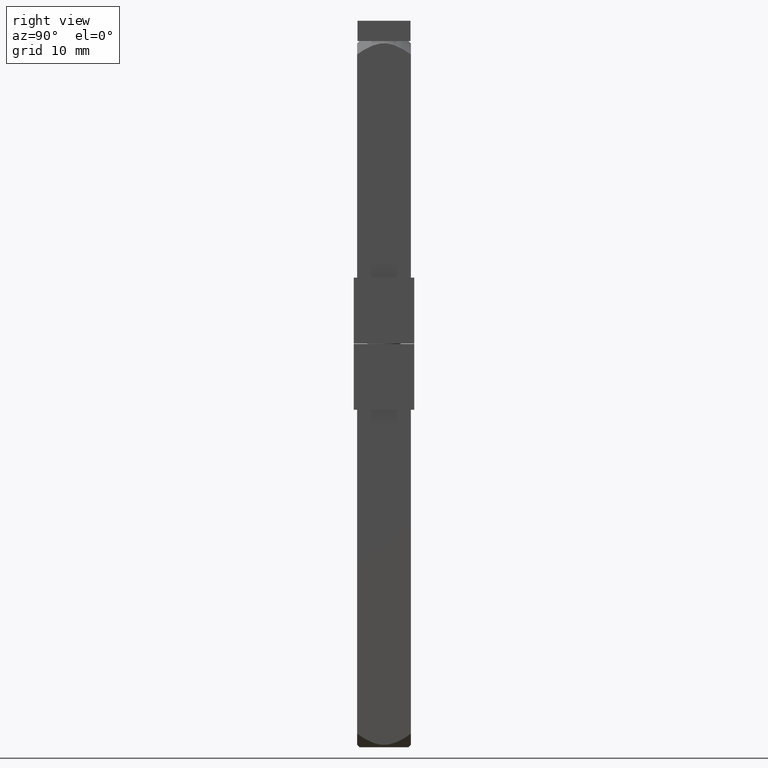
[diagram: clean part render]
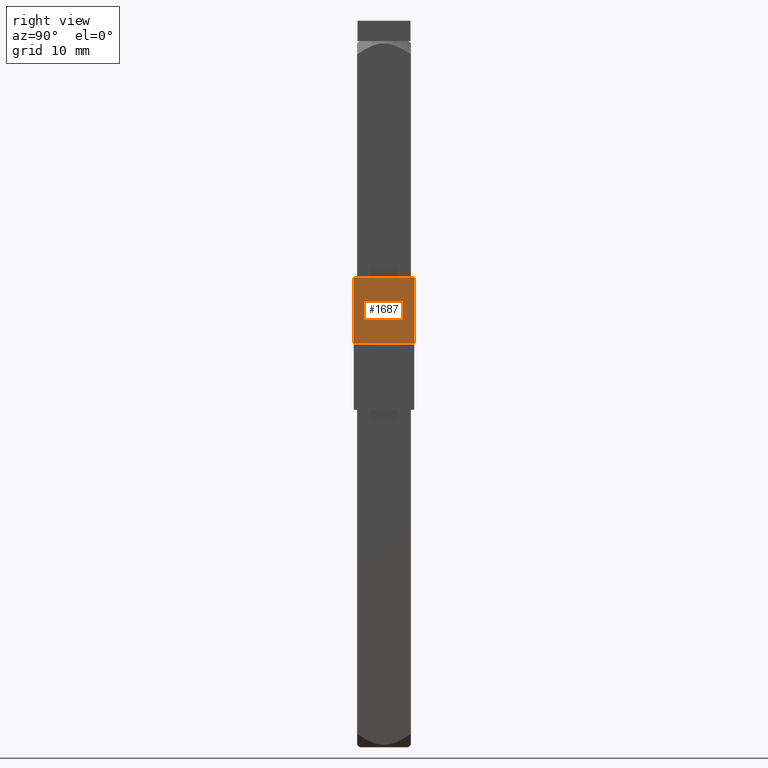
[diagram: same view with one face highlighted and labeled with its STEP entity id]
A machine part, right view. The second image highlights one B-rep face of the part: STEP entity #1687.
In plain terms, the highlighted planar face has unit normal (1, 0, 0).
Its self-contained STEP definition (entity closure, byte-faithful):
#958 = ORIENTED_EDGE ( 'NONE', *, *, #7749, .F. ) ;
#1439 = DIRECTION ( 'NONE',  ( 1.000000000000000000, 0.0000000000000000000, 0.0000000000000000000 ) ) ;
#1687 = ADVANCED_FACE ( 'NONE', ( #7536 ), #5926, .T. ) ;
#1795 = VECTOR ( 'NONE', #9469, 1000.000000000000000 ) ;
#1899 = CARTESIAN_POINT ( 'NONE',  ( 4.500000000000010700, -4.500000000000009800, 0.0000000000000000000 ) ) ;
#1926 = VERTEX_POINT ( 'NONE', #2427 ) ;
#2351 = CARTESIAN_POINT ( 'NONE',  ( -4.500000000000008900, -4.500000000000009800, -9.800000000000000700 ) ) ;
#2427 = CARTESIAN_POINT ( 'NONE',  ( 4.500000000000010700, -4.500000000000009800, -9.800000000000000700 ) ) ;
#2741 = VERTEX_POINT ( 'NONE', #7024 ) ;
#2744 = VERTEX_POINT ( 'NONE', #5282 ) ;
#3457 = VECTOR ( 'NONE', #11150, 1000.000000000000000 ) ;
#4356 = DIRECTION ( 'NONE',  ( 0.0000000000000000000, -1.000000000000000000, 0.0000000000000000000 ) ) ;
#4420 = VECTOR ( 'NONE', #10646, 1000.000000000000000 ) ;
#4506 = LINE ( 'NONE', #6532, #3457 ) ;
#4878 = CARTESIAN_POINT ( 'NONE',  ( -4.500000000000008900, -4.500000000000009800, 0.0000000000000000000 ) ) ;
#5211 = EDGE_CURVE ( 'NONE', #1926, #10139, #9012, .T. ) ;
#5215 = VECTOR ( 'NONE', #1439, 1000.000000000000000 ) ;
#5282 = CARTESIAN_POINT ( 'NONE',  ( -4.500000000000008900, -4.500000000000009800, -9.800000000000000700 ) ) ;
#5431 = LINE ( 'NONE', #4878, #1795 ) ;
#5894 = AXIS2_PLACEMENT_3D ( 'NONE', #10311, #4356, #7680 ) ;
#5926 = PLANE ( 'NONE',  #5894 ) ;
#6532 = CARTESIAN_POINT ( 'NONE',  ( -4.500000000000008900, -4.500000000000009800, -9.800000000000000700 ) ) ;
#6773 = ORIENTED_EDGE ( 'NONE', *, *, #6802, .T. ) ;
#6802 = EDGE_CURVE ( 'NONE', #2744, #1926, #9124, .T. ) ;
#7020 = ORIENTED_EDGE ( 'NONE', *, *, #10272, .F. ) ;
#7024 = CARTESIAN_POINT ( 'NONE',  ( -4.500000000000008900, -4.500000000000009800, 0.0000000000000000000 ) ) ;
#7536 = FACE_OUTER_BOUND ( 'NONE', #7879, .T. ) ;
#7680 = DIRECTION ( 'NONE',  ( 0.0000000000000000000, 0.0000000000000000000, -1.000000000000000000 ) ) ;
#7749 = EDGE_CURVE ( 'NONE', #2744, #2741, #4506, .T. ) ;
#7879 = EDGE_LOOP ( 'NONE', ( #7020, #958, #6773, #8031 ) ) ;
#8031 = ORIENTED_EDGE ( 'NONE', *, *, #5211, .T. ) ;
#9012 = LINE ( 'NONE', #9710, #4420 ) ;
#9124 = LINE ( 'NONE', #2351, #5215 ) ;
#9469 = DIRECTION ( 'NONE',  ( 1.000000000000000000, 0.0000000000000000000, 0.0000000000000000000 ) ) ;
#9710 = CARTESIAN_POINT ( 'NONE',  ( 4.500000000000010700, -4.500000000000009800, -9.800000000000000700 ) ) ;
#10139 = VERTEX_POINT ( 'NONE', #1899 ) ;
#10272 = EDGE_CURVE ( 'NONE', #2741, #10139, #5431, .T. ) ;
#10311 = CARTESIAN_POINT ( 'NONE',  ( -4.500000000000008900, -4.500000000000009800, -9.800000000000000700 ) ) ;
#10646 = DIRECTION ( 'NONE',  ( 0.0000000000000000000, -0.0000000000000000000, 1.000000000000000000 ) ) ;
#11150 = DIRECTION ( 'NONE',  ( 0.0000000000000000000, -0.0000000000000000000, 1.000000000000000000 ) ) ;